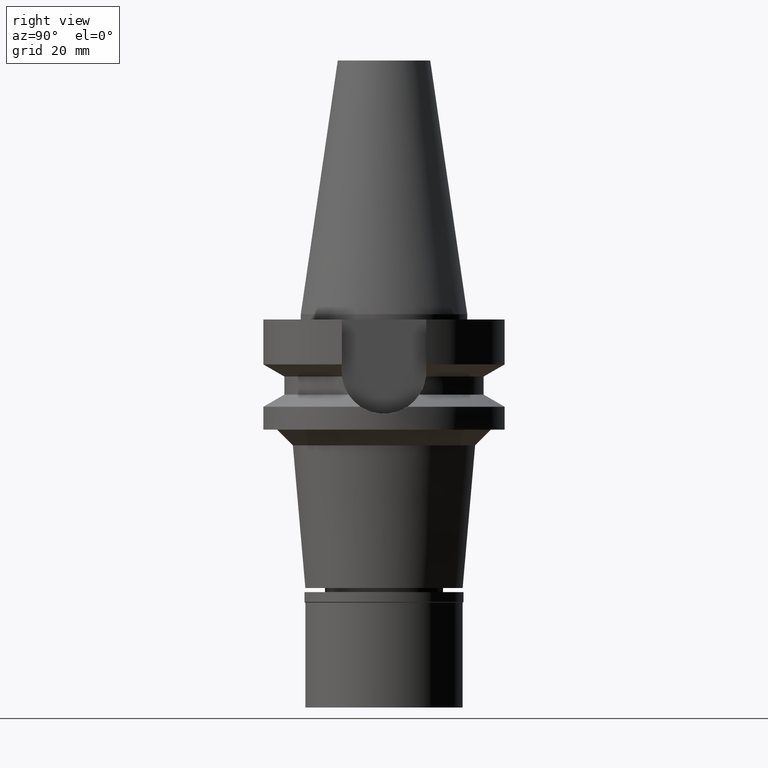
[diagram: clean part render]
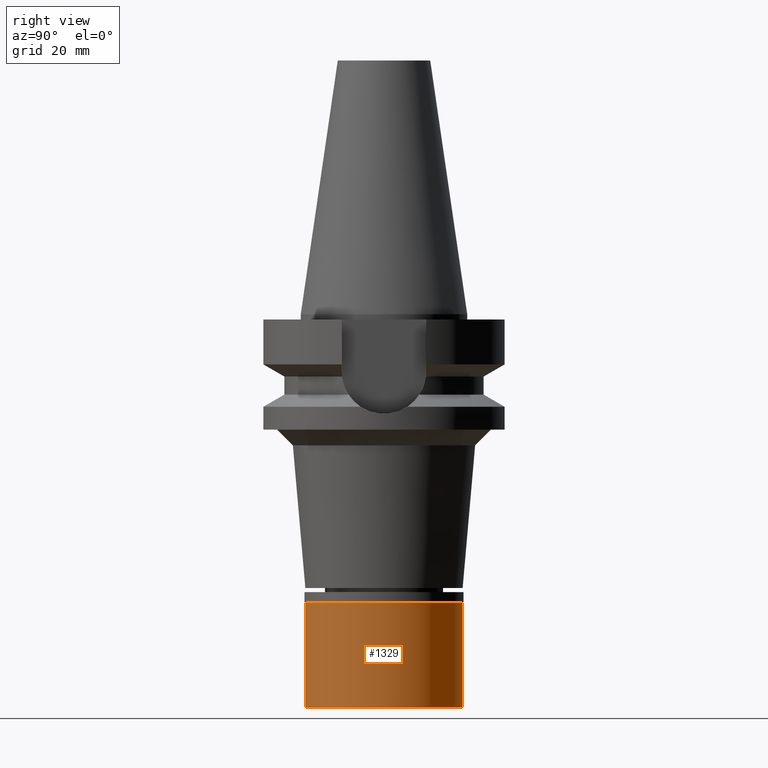
[diagram: same view with one face highlighted and labeled with its STEP entity id]
A machine part, right view. The second image highlights one B-rep face of the part: STEP entity #1329.
In plain terms, the highlighted cylindrical surface (partial cylindrical patch) has radius 15 mm, axis along (0, 0, -1).
Its self-contained STEP definition (entity closure, byte-faithful):
#39 = EDGE_CURVE ( 'NONE', #1826, #629, #1501, .T. ) ;
#51 = FACE_OUTER_BOUND ( 'NONE', #1626, .T. ) ;
#71 = ORIENTED_EDGE ( 'NONE', *, *, #2906, .T. ) ;
#85 = DIRECTION ( 'NONE',  ( 0.0000000000000000000, 0.0000000000000000000, 1.000000000000000000 ) ) ;
#151 = AXIS2_PLACEMENT_3D ( 'NONE', #2435, #2498, #2613 ) ;
#152 = CARTESIAN_POINT ( 'NONE',  ( 0.0000000000000000000, 15.00000000000000000, -22.00000000000000000 ) ) ;
#216 = DIRECTION ( 'NONE',  ( 0.0000000000000000000, 0.0000000000000000000, -1.000000000000000000 ) ) ;
#300 = CIRCLE ( 'NONE', #1458, 15.00000000000000000 ) ;
#310 = CARTESIAN_POINT ( 'NONE',  ( 0.0000000000000000000, 0.0000000000000000000, -22.00000000000000000 ) ) ;
#436 = CARTESIAN_POINT ( 'NONE',  ( 0.0000000000000000000, -15.00000000000000000, -2.000000000000000000 ) ) ;
#481 = ORIENTED_EDGE ( 'NONE', *, *, #652, .T. ) ;
#570 = DIRECTION ( 'NONE',  ( 0.0000000000000000000, -1.000000000000000000, 0.0000000000000000000 ) ) ;
#629 = VERTEX_POINT ( 'NONE', #152 ) ;
#652 = EDGE_CURVE ( 'NONE', #1362, #1826, #2798, .T. ) ;
#684 = CARTESIAN_POINT ( 'NONE',  ( 0.0000000000000000000, -15.00000000000000000, -2.000000000000000000 ) ) ;
#837 = CARTESIAN_POINT ( 'NONE',  ( 0.0000000000000000000, 15.00000000000000000, -2.000000000000000000 ) ) ;
#941 = DIRECTION ( 'NONE',  ( 0.0000000000000000000, 1.000000000000000000, 0.0000000000000000000 ) ) ;
#1154 = VECTOR ( 'NONE', #2480, 1000.000000000000000 ) ;
#1285 = LINE ( 'NONE', #1781, #1154 ) ;
#1329 = ADVANCED_FACE ( 'NONE', ( #51 ), #1718, .T. ) ;
#1362 = VERTEX_POINT ( 'NONE', #436 ) ;
#1365 = DIRECTION ( 'NONE',  ( 0.0000000000000000000, 0.0000000000000000000, -1.000000000000000000 ) ) ;
#1458 = AXIS2_PLACEMENT_3D ( 'NONE', #2843, #216, #941 ) ;
#1465 = CARTESIAN_POINT ( 'NONE',  ( 0.0000000000000000000, -15.00000000000000000, -22.00000000000000000 ) ) ;
#1501 = CIRCLE ( 'NONE', #2489, 15.00000000000000000 ) ;
#1596 = VECTOR ( 'NONE', #1365, 1000.000000000000000 ) ;
#1626 = EDGE_LOOP ( 'NONE', ( #71, #481, #2072, #2515 ) ) ;
#1718 = CYLINDRICAL_SURFACE ( 'NONE', #151, 15.00000000000000000 ) ;
#1781 = CARTESIAN_POINT ( 'NONE',  ( 0.0000000000000000000, 15.00000000000000000, -2.000000000000000000 ) ) ;
#1826 = VERTEX_POINT ( 'NONE', #1465 ) ;
#2072 = ORIENTED_EDGE ( 'NONE', *, *, #39, .T. ) ;
#2435 = CARTESIAN_POINT ( 'NONE',  ( 0.0000000000000000000, 0.0000000000000000000, 0.0000000000000000000 ) ) ;
#2480 = DIRECTION ( 'NONE',  ( 0.0000000000000000000, 0.0000000000000000000, -1.000000000000000000 ) ) ;
#2489 = AXIS2_PLACEMENT_3D ( 'NONE', #310, #85, #570 ) ;
#2498 = DIRECTION ( 'NONE',  ( 0.0000000000000000000, 0.0000000000000000000, -1.000000000000000000 ) ) ;
#2515 = ORIENTED_EDGE ( 'NONE', *, *, #2823, .F. ) ;
#2613 = DIRECTION ( 'NONE',  ( 0.0000000000000000000, -1.000000000000000000, 0.0000000000000000000 ) ) ;
#2782 = VERTEX_POINT ( 'NONE', #837 ) ;
#2798 = LINE ( 'NONE', #684, #1596 ) ;
#2823 = EDGE_CURVE ( 'NONE', #2782, #629, #1285, .T. ) ;
#2843 = CARTESIAN_POINT ( 'NONE',  ( 0.0000000000000000000, 0.0000000000000000000, -2.000000000000000000 ) ) ;
#2906 = EDGE_CURVE ( 'NONE', #2782, #1362, #300, .T. ) ;